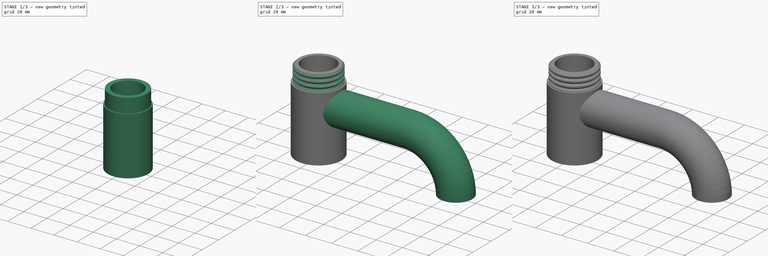
[diagram: build sequence overview — one tinted view per stage of 3, left to right]
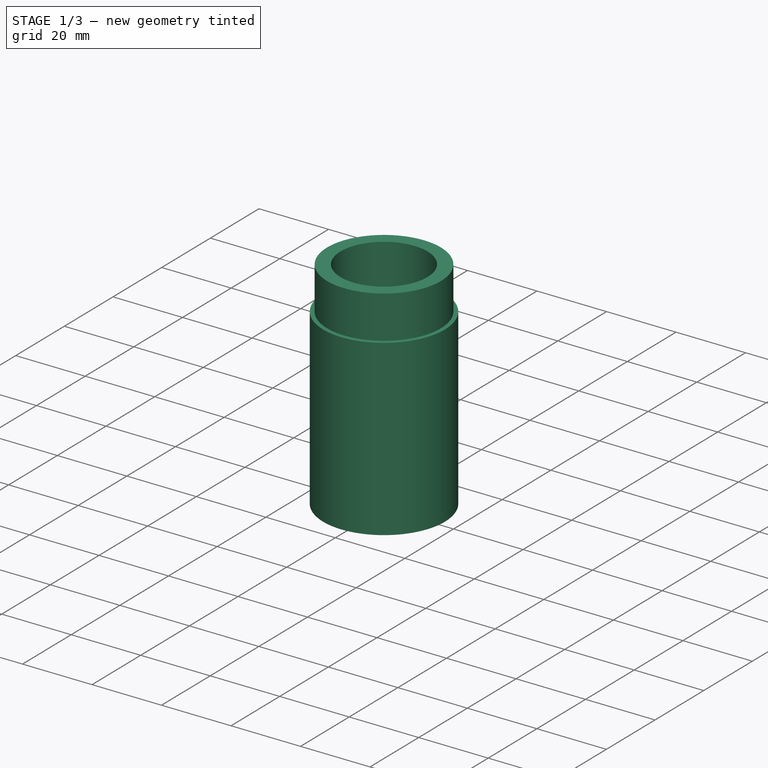
[diagram: stage 1 of 3 — iso view after this stage's code; geometry added in this stage tinted green]
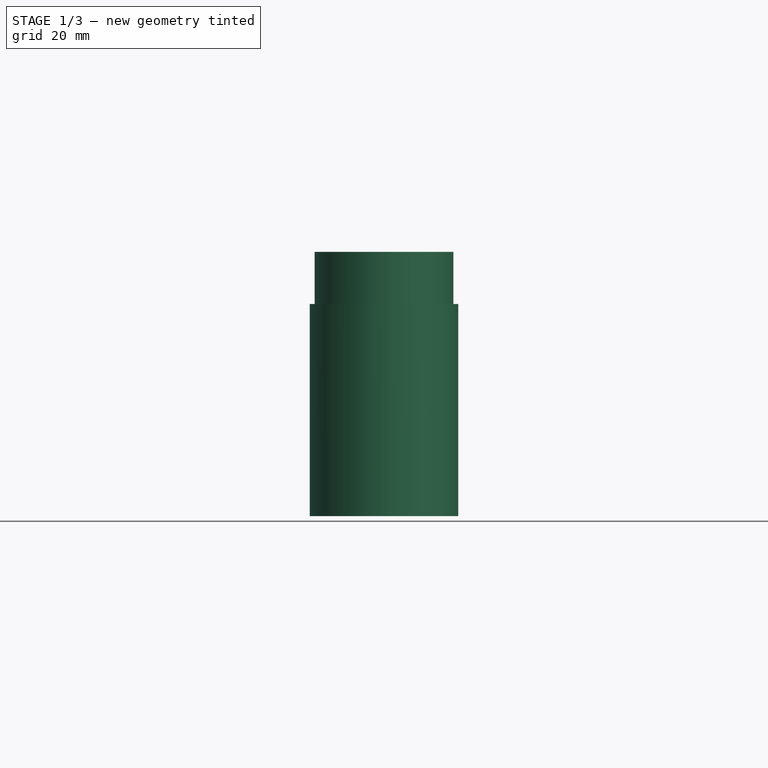
[diagram: stage 1 of 3 — front view after this stage's code; geometry added in this stage tinted green]
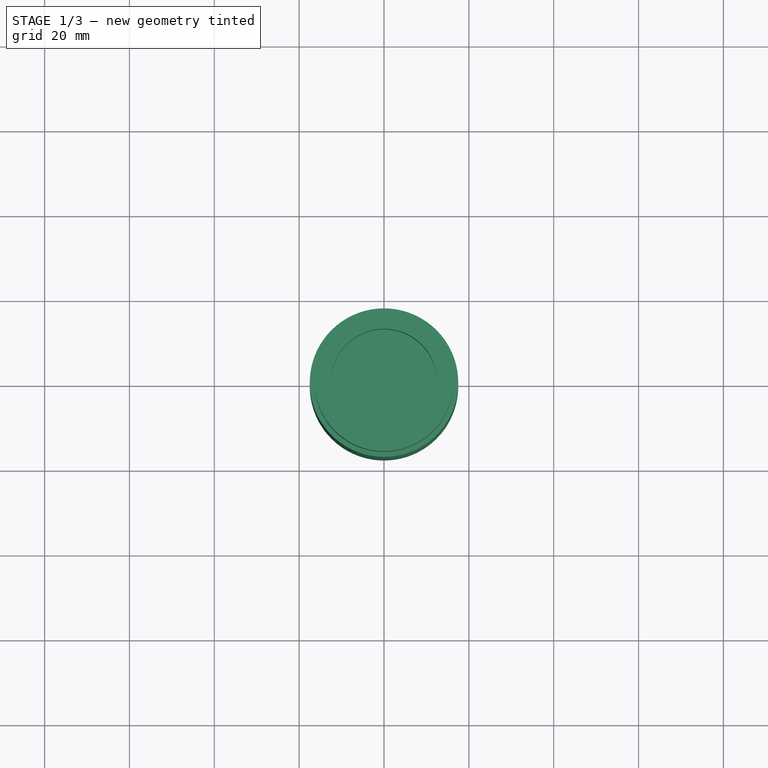
[diagram: stage 1 of 3 — top view after this stage's code; geometry added in this stage tinted green]
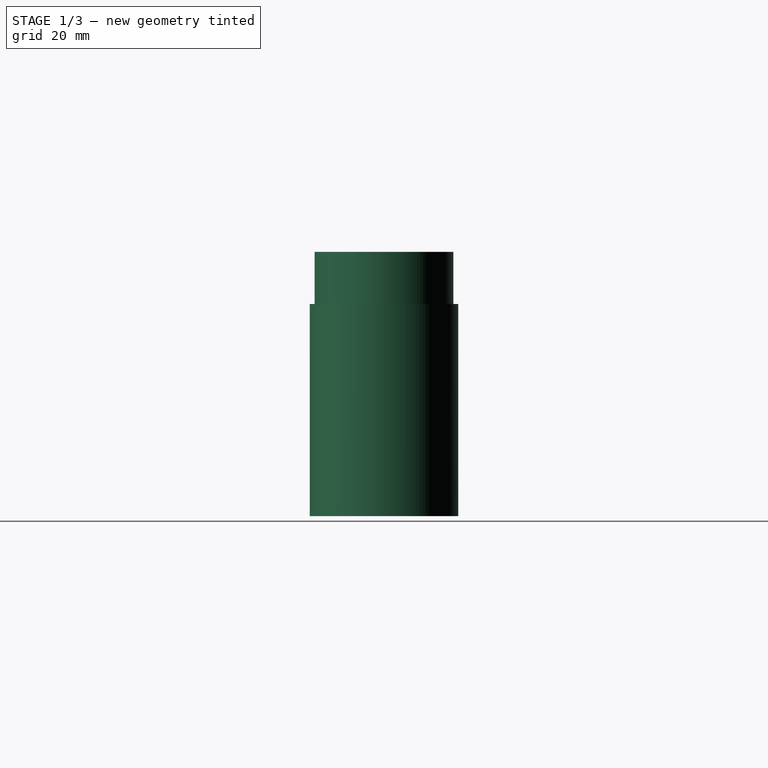
[diagram: stage 1 of 3 — right view after this stage's code; geometry added in this stage tinted green]
FCSTD DOCUMENT  (FreeCAD 0.20RUnknown)
Label: LampStand01
License: All rights reserved
LicenseURL: http://en.wikipedia.org/wiki/All_rights_reserved
objects: Sketcher::SketchObject×6, PartDesign::Pad×3, PartDesign::Groove×1, PartDesign::Revolution×1, PartDesign::Pocket×1, PartDesign::Hole×1, PartDesign::Body×1
note: 21 computed .brp shape members not serialized (recipe doc carries the construction recipe); baked Part::Feature solids carry a one-line shape summary decoded from their .brp

FEATURE [Sketcher::SketchObject] Sketch
  FullyConstrained = true
  MapMode = 5
  Support = -> [XY_Plane]
  sketch-geometry (1):
    g0: Circle CenterX=0 CenterY=0 CenterZ=0 NormalX=0 NormalY=0 NormalZ=1 AngleXU=0 Radius=17.5
  constraints (2):
    c: Coincident(g0,g-1)
    c: Diameter(g0) = 35
FEATURE [PartDesign::Pad] Pad
  Direction = (0,0,1)
  Length = 50
  Length2 = 10
  Profile = -> Sketch
  ReferenceAxis = -> Sketch [N_Axis]
  Type = 0
FEATURE [Sketcher::SketchObject] Sketch001
  FullyConstrained = true
  MapMode = 5
  Placement = pos=(0,0,50) rot=(0,0,1;0rad)
  Support = -> [Pad]
  sketch-geometry (2):
    g0: Circle CenterX=0 CenterY=0 CenterZ=0 NormalX=0 NormalY=0 NormalZ=1 AngleXU=0 Radius=16.35
    g1: Circle CenterX=0 CenterY=0 CenterZ=0 NormalX=0 NormalY=0 NormalZ=1 AngleXU=0 Radius=12.5
  constraints (4):
    c: Coincident(g0,g-1)
    c: Diameter(g0) = 32.7
    c: Coincident(g1,g0)
    c: Diameter(g1) = 25
FEATURE [PartDesign::Pad] Pad001
  BaseFeature = -> Pad
  Direction = (0,0,1)
  Length = 12.3
  Length2 = 10
  Profile = -> Sketch001
  ReferenceAxis = -> Sketch001 [N_Axis]
  Type = 0
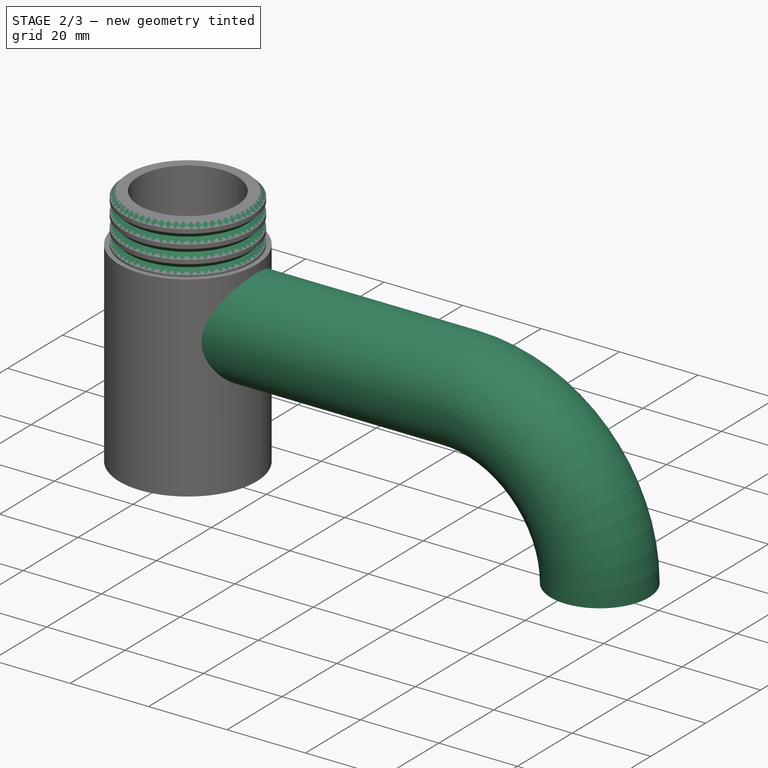
[diagram: stage 2 of 3 — iso view after this stage's code; geometry added in this stage tinted green]
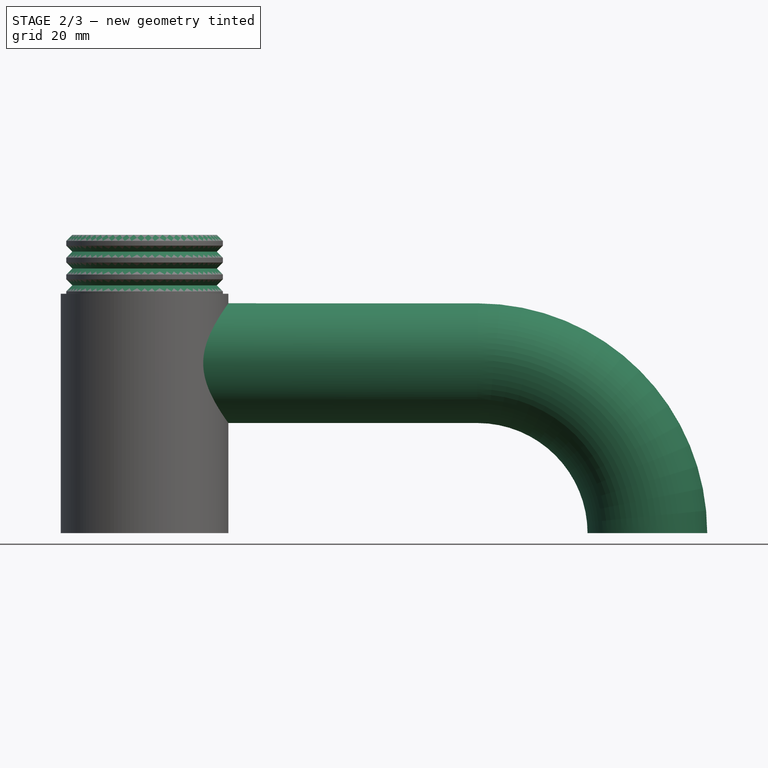
[diagram: stage 2 of 3 — front view after this stage's code; geometry added in this stage tinted green]
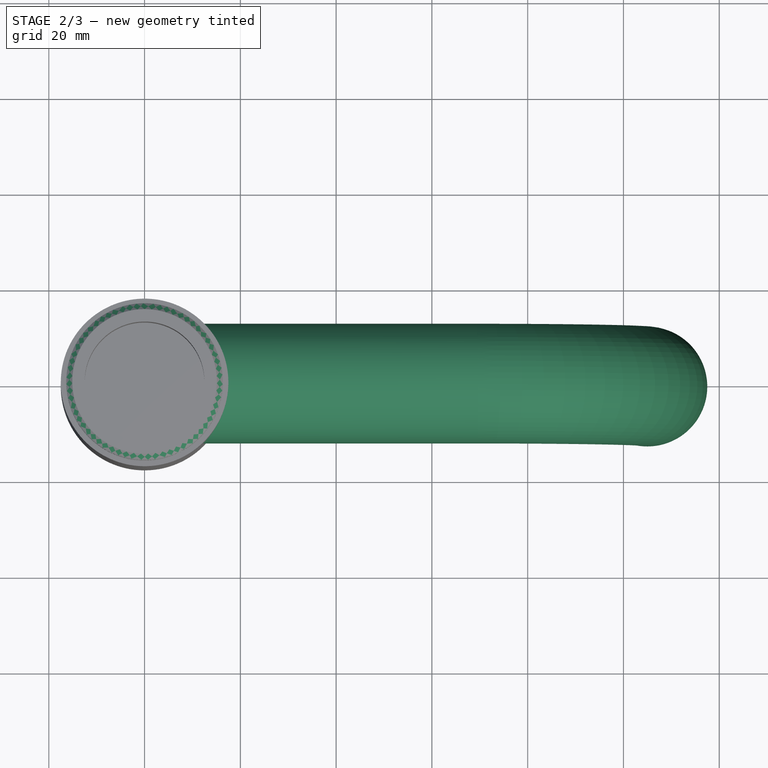
[diagram: stage 2 of 3 — top view after this stage's code; geometry added in this stage tinted green]
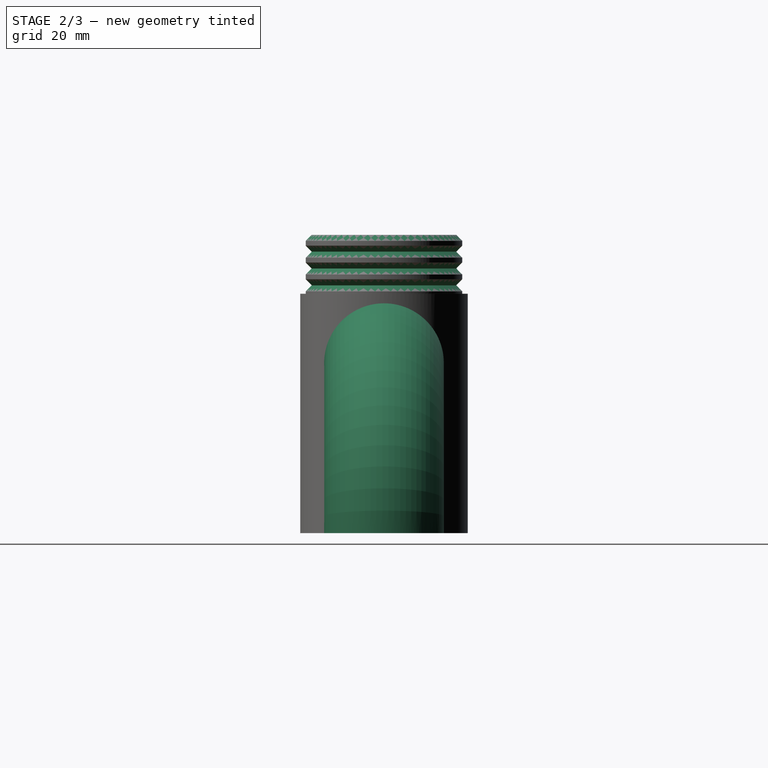
[diagram: stage 2 of 3 — right view after this stage's code; geometry added in this stage tinted green]
FEATURE [Sketcher::SketchObject] Sketch002
  ExternalGeometry = -> [Pad001]
  FullyConstrained = true
  MapMode = 5
  Placement = pos=(0,0,0) rot=(0.57735,0.57735,0.57735;2.0944rad)
  Support = -> [YZ_Plane]
  sketch-geometry (18):
    g0: LineSegment StartX=-12.5 StartY=62.3 StartZ=0 EndX=-16.35 EndY=62.3 EndZ=0
    g1: LineSegment StartX=-16.35 StartY=62.3 StartZ=0 EndX=-16.35 EndY=50 EndZ=0
    g2: LineSegment StartX=-16.35 StartY=50 StartZ=0 EndX=-12.5 EndY=50 EndZ=0
    g3: LineSegment StartX=-12.5 StartY=50 StartZ=0 EndX=-12.5 EndY=62.3 EndZ=0
    g4: LineSegment StartX=-16.85 StartY=50 StartZ=0 EndX=-15.0929 EndY=51.7571 EndZ=0
    g5: LineSegment StartX=-16.85 StartY=53.5143 StartZ=0 EndX=-15.0929 EndY=51.7571 EndZ=0
    g6: LineSegment StartX=-16.85 StartY=50 StartZ=0 EndX=-16.85 EndY=62.3 EndZ=0
    g7: LineSegment StartX=-16.85 StartY=53.5143 StartZ=0 EndX=-15.0929 EndY=55.2714 EndZ=0
    g8: LineSegment StartX=-15.0929 StartY=55.2714 StartZ=0 EndX=-16.85 EndY=57.0286 EndZ=0
    g9: LineSegment StartX=-16.85 StartY=57.0286 StartZ=0 EndX=-15.0929 EndY=58.7857 EndZ=0
    g10: LineSegment StartX=-15.0929 StartY=62.3 StartZ=0 EndX=-15.0929 EndY=50 EndZ=0
    g11: LineSegment StartX=-16.35 StartY=62.3 StartZ=0 EndX=-16.85 EndY=62.3 EndZ=0
    g12: LineSegment StartX=-15.0929 StartY=58.7857 StartZ=0 EndX=-16.85 EndY=60.5429 EndZ=0
    g13: LineSegment StartX=-16.85 StartY=60.5429 StartZ=0 EndX=-15.0929 EndY=62.3 EndZ=0
    g14: LineSegment StartX=-15.0929 StartY=62.3 StartZ=0 EndX=-15.0929 EndY=63.3 EndZ=0
    g15: LineSegment StartX=-15.0929 StartY=63.3 StartZ=0 EndX=-18.85 EndY=63.3 EndZ=0
    g16: LineSegment StartX=-18.85 StartY=63.3 StartZ=0 EndX=-18.85 EndY=50 EndZ=0
    g17: LineSegment StartX=-18.85 StartY=50 StartZ=0 EndX=-16.85 EndY=50 EndZ=0
  constraints (53):
    c: Coincident(g0,g1)
    c: Coincident(g1,g2)
    c: Coincident(g2,g3)
    c: Coincident(g3,g0)
    c: Horizontal(g0)
    c: Horizontal(g2)
    c: Vertical(g1)
    c: Vertical(g3)
    c: Coincident(g0,g-3)
    c: Coincident(g1,g-6)
    c: Coincident(g5,g4)
    c: Perpendicular(g4,g5)
    c: Equal(g5,g4)
    c: PointOnObject(g6,g-5)
    c: Vertical(g6)
    c: PointOnObject(g5,g6)
    c: PointOnObject(g4,g6)
    c: Coincident(g5,g7)
    c: Coincident(g7,g8)
    c: PointOnObject(g8,g6)
    c: Coincident(g8,g9)
    c: PointOnObject(g10,g0)
    c: PointOnObject(g10,g2)
    c: Vertical(g10)
    c: PointOnObject(g9,g10)
    c: PointOnObject(g7,g10)
    c: PointOnObject(g4,g10)
    c: Equal(g5,g7)
    c: Equal(g7,g8)
    c: Equal(g8,g9)
    c: PointOnObject(g4,g-5)
    c: Coincident(g11,g0)
    c: Coincident(g11,g6)
    c: Horizontal(g11)
    c: Coincident(g9,g12)
    c: PointOnObject(g12,g6)
    c: Coincident(g12,g13)
    c: PointOnObject(g13,g10)
    c: Equal(g12,g9)
    c: Equal(g12,g13)
    c: PointOnObject(g13,g0)
    c: Coincident(g13,g14)
    c: Vertical(g14)
    c: Coincident(g14,g15)
    c: Horizontal(g15)
    c: Coincident(g15,g16)
    c: Vertical(g16)
    c: Coincident(g16,g17)
    c: Coincident(g17,g4)
    c: Horizontal(g17)
    c: DistanceY(g14,g14) = 1
    c: DistanceX(g15,g12) = 2
    c: DistanceX(g12,g0) = 0.5
FEATURE [PartDesign::Groove] Groove
  Angle = 360
  Axis = (-2e-16,3e-16,1)
  Base = (0,0,0)
  BaseFeature = -> Pad001
  Profile = -> Sketch002
  ReferenceAxis = -> Sketch002 [V_Axis]
  Reversed = true
FEATURE [Sketcher::SketchObject] Sketch003  label="SketchSideFood"
  ExternalGeometry = -> [Groove]
  FullyConstrained = true
  MapMode = 5
  Placement = pos=(0,0,0) rot=(0.57735,0.57735,0.57735;2.0944rad)
  Support = -> [YZ_Plane]
  sketch-geometry (2):
    g0: Circle CenterX=0 CenterY=35.5 CenterZ=0 NormalX=0 NormalY=0 NormalZ=1 AngleXU=0 Radius=12.5
    g1: GeomPoint X=0 Y=48 Z=0
  constraints (5):
    c: PointOnObject(g0,g-2)
    c: Diameter(g0) = 25
    c: PointOnObject(g1,g0)
    c: PointOnObject(g1,g-2)
    c: DistanceY(g1,g-3) = 2  'gap'
FEATURE [PartDesign::Pad] Pad002
  BaseFeature = -> Groove
  Direction = (1,-2e-16,3e-16)
  Length = 69.5
  Length2 = 10
  Profile = -> Sketch003
  ReferenceAxis = -> Sketch003 [N_Axis]
  Type = 0
  expr: Length = 50mm + 35mm / 2 + <<SketchSideFood>>.Constraints.gap
FEATURE [Sketcher::SketchObject] Sketch004
  ExternalGeometry = -> [Pad002]
  FullyConstrained = true
  MapMode = 5
  Placement = pos=(69.5,-1.54e-14,1.54e-14) rot=(0.57735,0.57735,0.57735;2.0944rad)
  Support = -> [Pad002]
  sketch-geometry (1):
    g0: Circle CenterX=7.9e-15 CenterY=35.5 CenterZ=0 NormalX=0 NormalY=0 NormalZ=1 AngleXU=0 Radius=12.5
  constraints (2):
    c: Coincident(g0,g-3)
    c: Tangent(g0,g-3)
FEATURE [PartDesign::Revolution] Revolution
  Angle = 90
  Axis = (2e-16,1,0)
  Base = (69.5,-1.54e-14,1.54e-14)
  BaseFeature = -> Pad002
  Profile = -> Sketch004
  ReferenceAxis = -> Sketch004 [H_Axis]
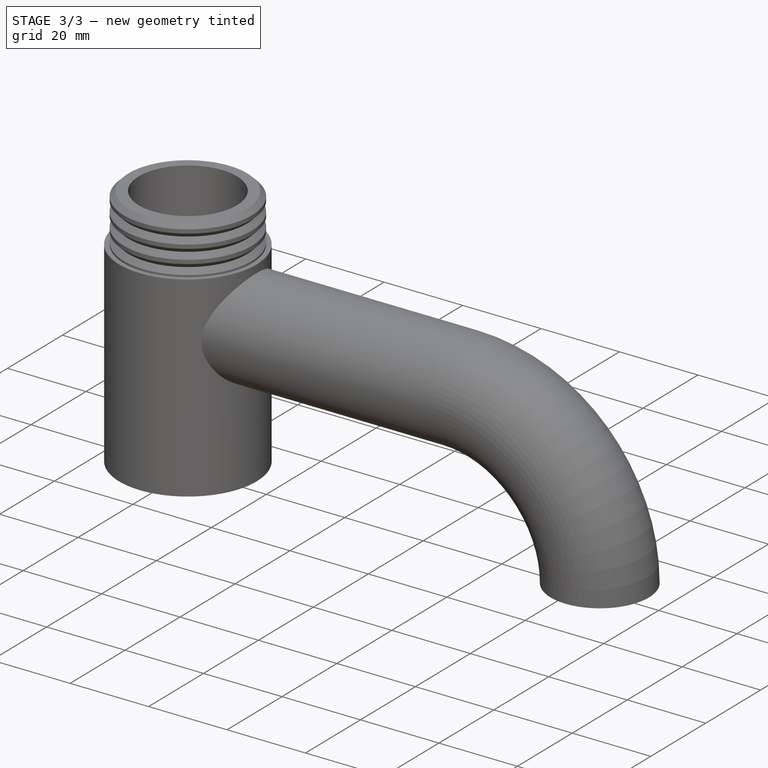
[diagram: stage 3 of 3 — iso view after this stage's code; geometry added in this stage tinted green]
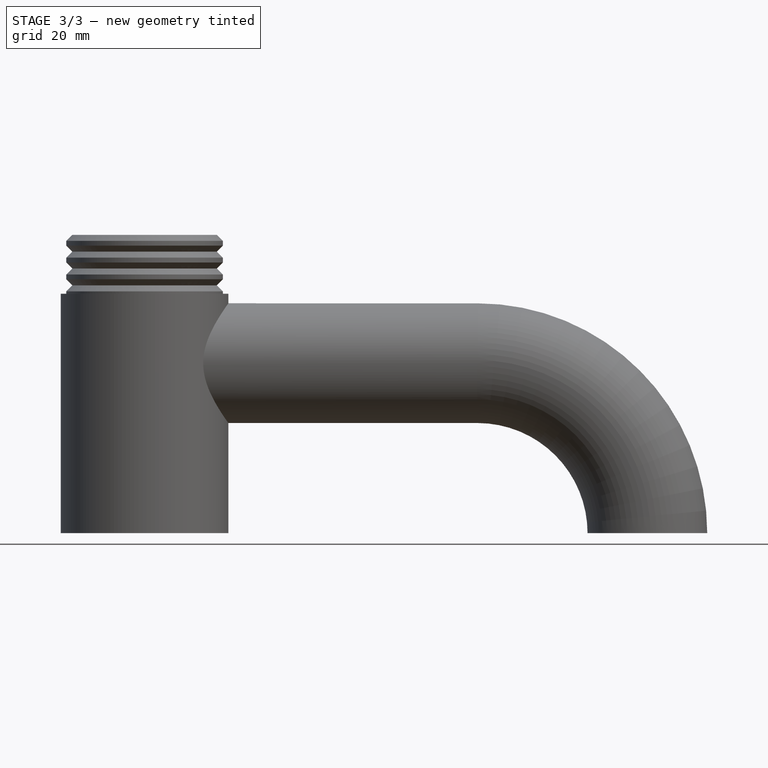
[diagram: stage 3 of 3 — front view after this stage's code; geometry added in this stage tinted green]
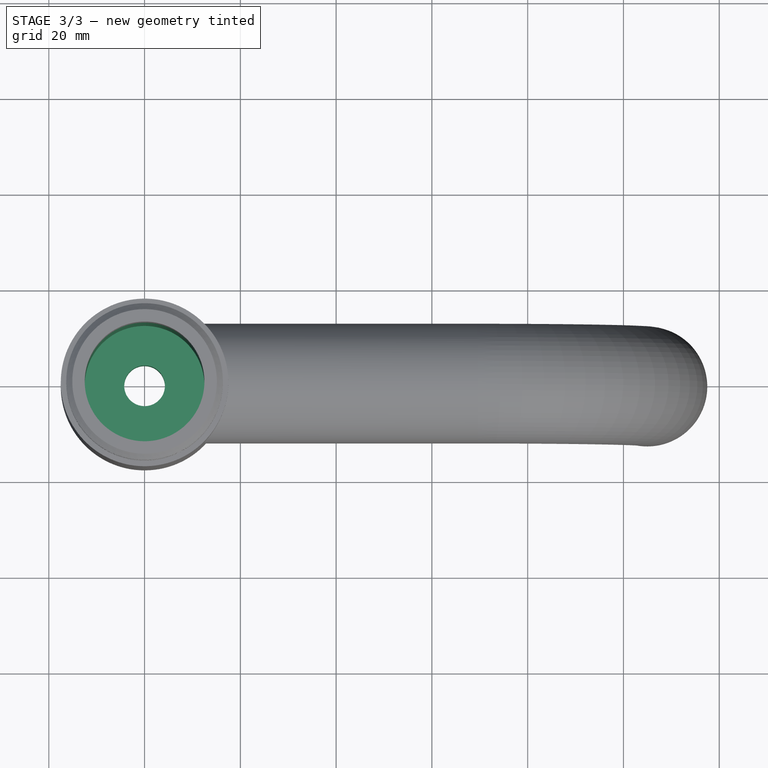
[diagram: stage 3 of 3 — top view after this stage's code; geometry added in this stage tinted green]
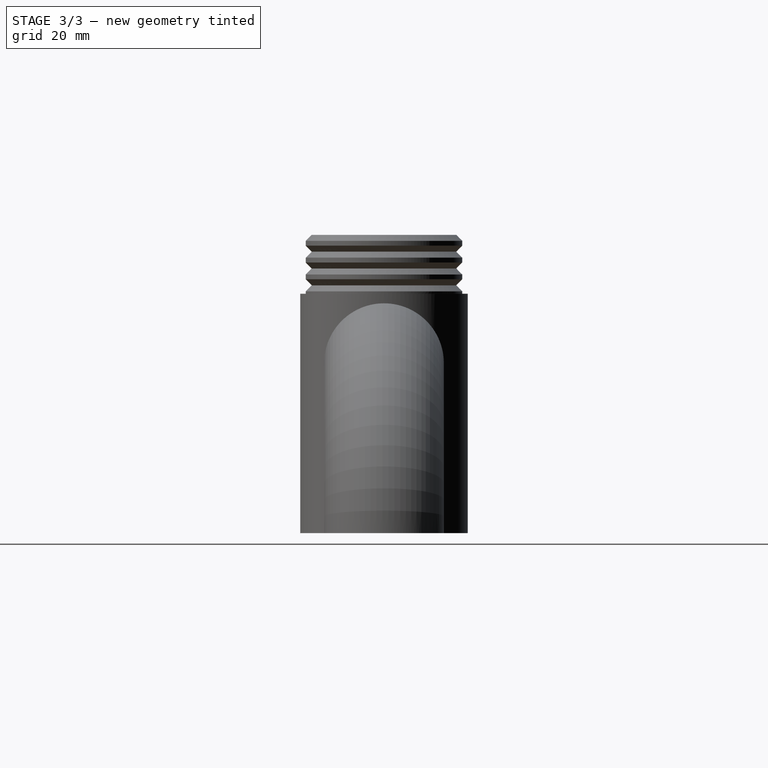
[diagram: stage 3 of 3 — right view after this stage's code; geometry added in this stage tinted green]
FEATURE [Sketcher::SketchObject] Sketch005
  FullyConstrained = true
  MapMode = 5
  Placement = pos=(0,0,50) rot=(0,0,1;0rad)
  Support = -> [Revolution]
  sketch-geometry (1):
    g0: Circle CenterX=0 CenterY=0 CenterZ=0 NormalX=0 NormalY=0 NormalZ=1 AngleXU=0 Radius=12.5
  constraints (2):
    c: Coincident(g0,g-1)
    c: Diameter(g0) = 25
FEATURE [PartDesign::Pocket] Pocket
  BaseFeature = -> Revolution
  Direction = (0,0,-1)
  Length = 40
  Length2 = 5
  Profile = -> Sketch005
  ReferenceAxis = -> Sketch005 [N_Axis]
  Type = 0
FEATURE [PartDesign::Hole] Hole
  BaseFeature = -> Pocket
  CustomThreadClearance = 0
  Depth = 308.295
  DepthType = 1
  Diameter = 8.5
  DrillForDepth = false
  DrillPoint = 1
  DrillPointAngle = 118
  HoleCutCountersinkAngle = 90
  HoleCutCustomValues = false
  HoleCutDepth = 0
  HoleCutDiameter = 6.1
  HoleCutType = 0
  ModelThread = false
  Profile = -> Sketch005
  Tapered = false
  TaperedAngle = 90
  ThreadClass = 0
  ThreadDepth = 308.295
  ThreadDepthType = 0
  ThreadDirection = 0
  ThreadFit = 0
  ThreadSize = 0
  ThreadType = 0
  Threaded = false
  UseCustomThreadClearance = false
FEATURE [PartDesign::Body] Body
  Group = -> [Sketch,Pad,Sketch001,Pad001,Sketch002,Groove,Sketch003,Pad002,Sketch004,Revolution,Sketch005,Pocket,Hole]
  Origin = -> Origin
  Tip = -> Hole
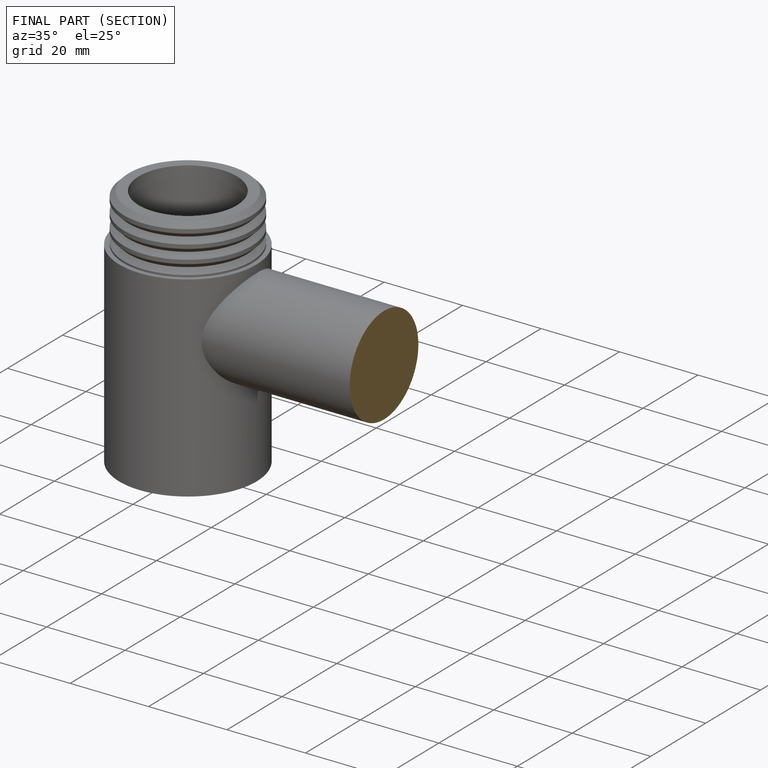
[diagram: finished part — half-section view (interior)]
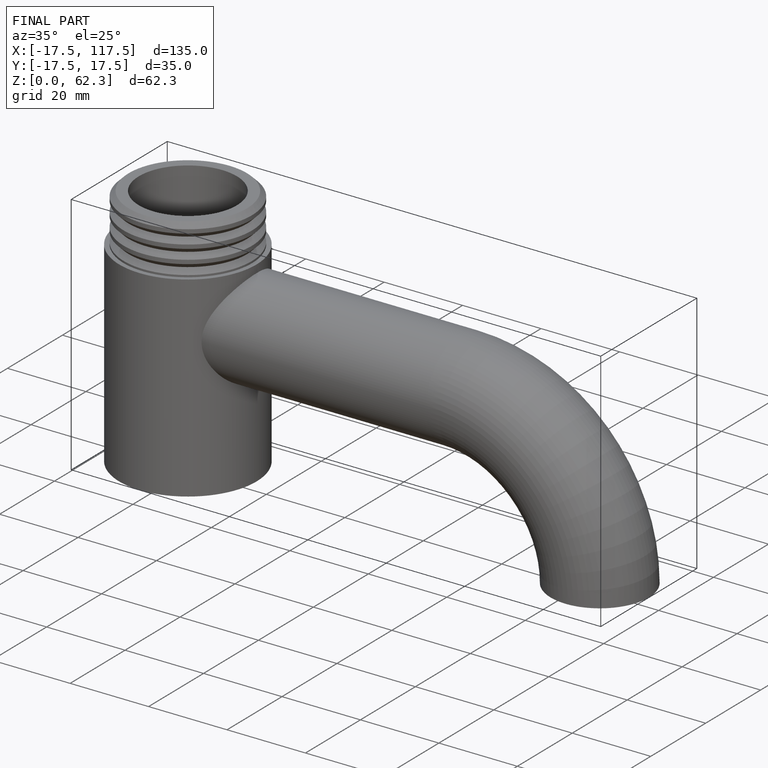
[diagram: finished part — iso view with bounding-box wireframe]
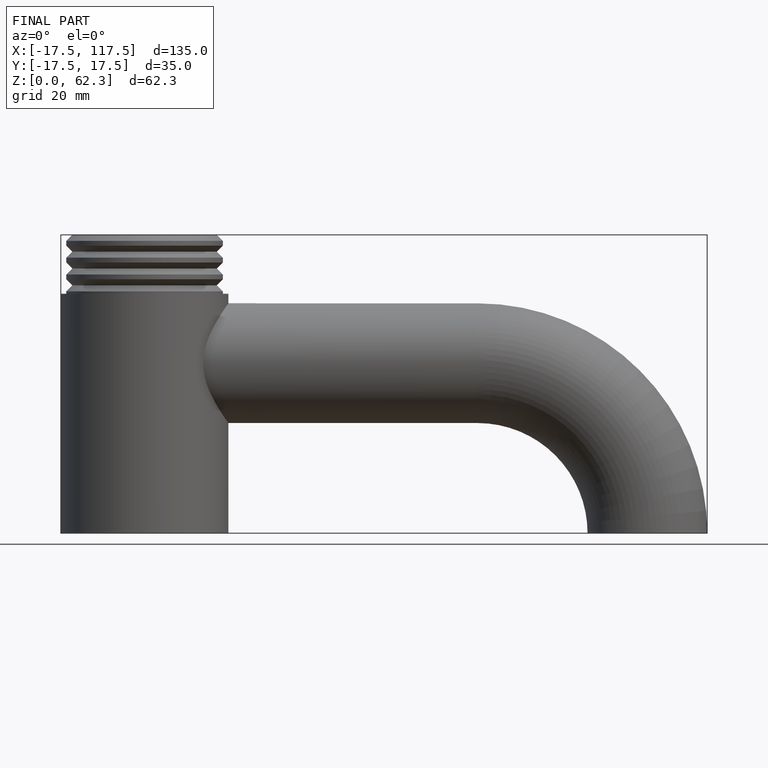
[diagram: finished part — front view with bounding-box wireframe]
